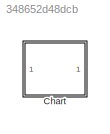
MODEL slx_348652d48dcb
KIND model
CONFIG AbsTol = auto
CONFIG EnableMultiTasking = off
CONFIG FixedStep = auto
CONFIG MaxStep = auto
CONFIG MinStep = auto
CONFIG RelTol = 1e-3
CONFIG SampleTimeConstraint = Unconstrained
CONFIG SolverName = VariableStepAuto
CONFIG StartTime = 0.0
CONFIG StopTime = 10.0
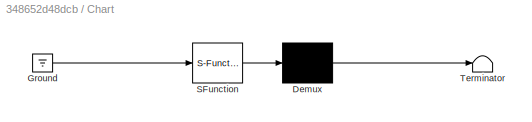
BLOCK [SubSystem] Chart
  ErrorFcn = Stateflow.Translate.translate
  PermitHierarchicalResolution = ExplicitOnly
  Ports = []
  RequestExecContextInheritance = off
  SFBlockType = Chart
  TreatAsAtomicUnit = on
BLOCK [Demux] Chart/ Demux 
  Outputs = 1
  Ports = [1, 1]
BLOCK [Ground] Chart/ Ground 
BLOCK [S-Function] Chart/ SFunction 
  EnableBusSupport = off
  FunctionName = sf_sfun
  PortCounts = [1 1]
  Ports = [1, 1]
  SFcnIsStateOwnerBlock = off
  SFunctionDeploymentMode = off
  Tag = Stateflow S-Function 43
BLOCK [Terminator] Chart/ Terminator 
CHART Chart states=3 transitions=6
  STATE_LABEL 'A\nen:fprintf("enA");\ndu:x = x+1;\nex:fprintf("exA");'
  STATE_LABEL 'A1'
  STATE_LABEL 'A2'
  STATE_LABEL '{x = x-1;}'
  STATE_LABEL '{x = x+1;}'
  STATE_LABEL '[x>1]{x = x+1;}'
  STATE_LABEL 'A1'
  STATE_LABEL 'A2'
CHART  states=0 transitions=0
